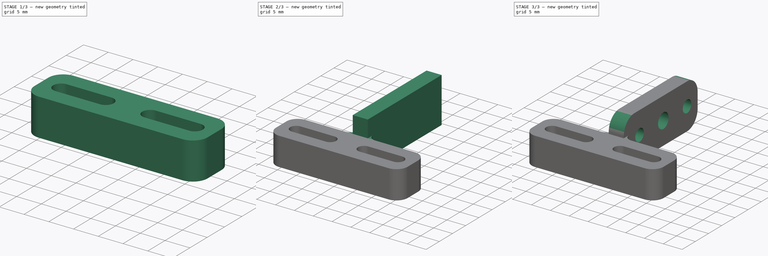
[diagram: build sequence overview — one tinted view per stage of 3, left to right]
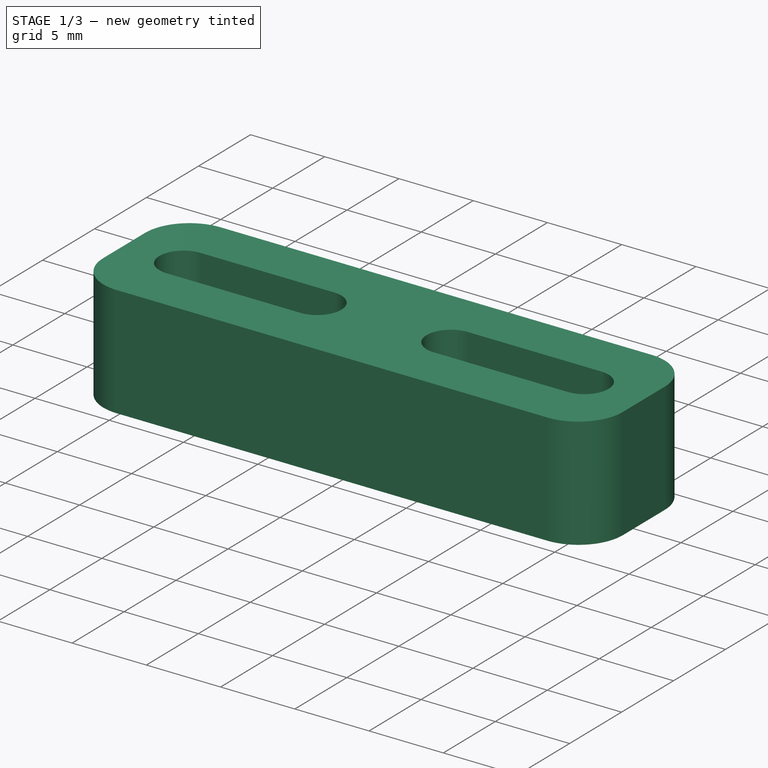
[diagram: stage 1 of 3 — iso view after this stage's code; geometry added in this stage tinted green]
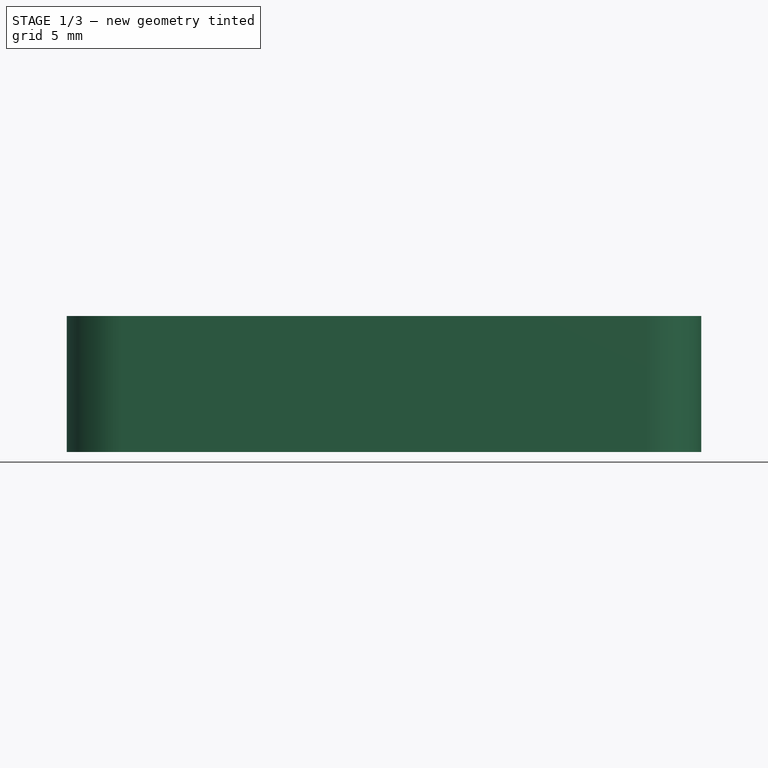
[diagram: stage 1 of 3 — front view after this stage's code; geometry added in this stage tinted green]
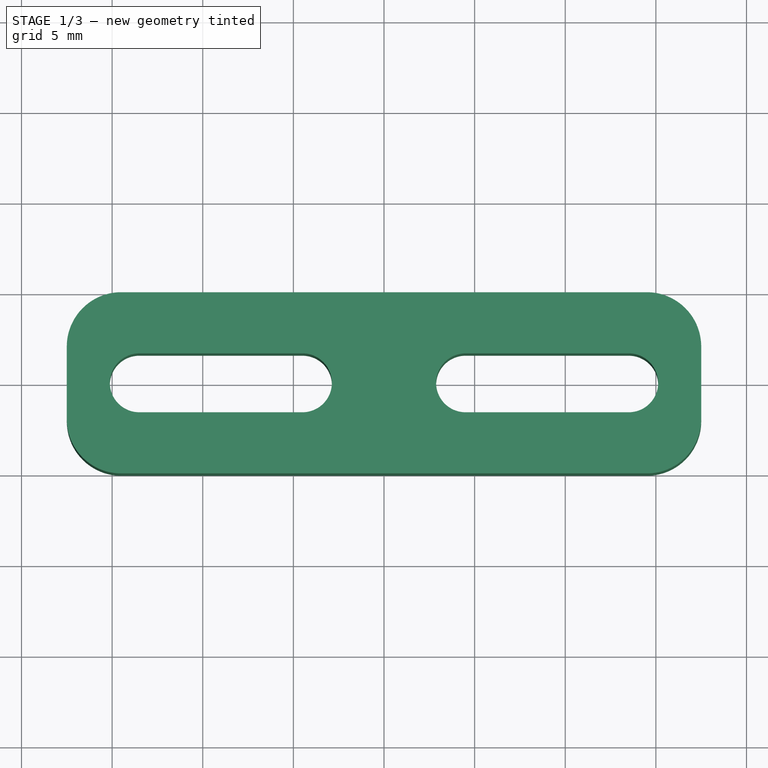
[diagram: stage 1 of 3 — top view after this stage's code; geometry added in this stage tinted green]
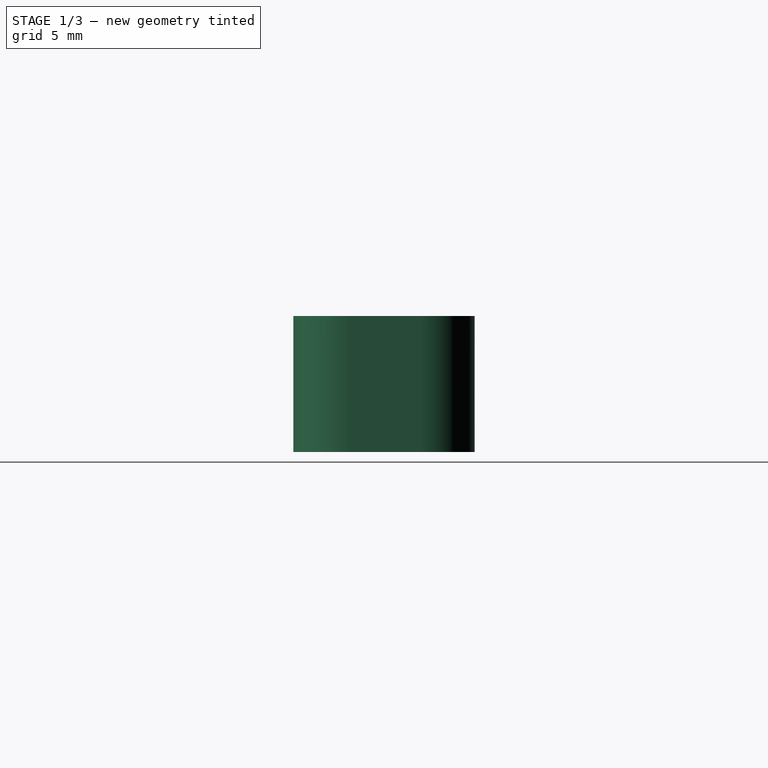
[diagram: stage 1 of 3 — right view after this stage's code; geometry added in this stage tinted green]
FCSTD DOCUMENT  (FreeCAD 0.19R)
Label: bltouch-holder
License: All rights reserved
LicenseURL: http://en.wikipedia.org/wiki/All_rights_reserved
objects: Sketcher::SketchObject×4, PartDesign::Fillet×3, PartDesign::Pad×2, PartDesign::Pocket×1, PartDesign::Body×1
note: 17 computed .brp shape members not serialized (recipe doc carries the construction recipe); baked Part::Feature solids carry a one-line shape summary decoded from their .brp

FEATURE [Sketcher::SketchObject] Sketch
  FullyConstrained = true
  MapMode = 5
  Support = -> [XY_Plane]
  sketch-geometry (12):
    g0: LineSegment StartX=-17.5 StartY=5 StartZ=0 EndX=17.5 EndY=5 EndZ=0
    g1: LineSegment StartX=17.5 StartY=5 StartZ=0 EndX=17.5 EndY=-5 EndZ=0
    g2: LineSegment StartX=17.5 StartY=-5 StartZ=0 EndX=-17.5 EndY=-5 EndZ=0
    g3: LineSegment StartX=-17.5 StartY=-5 StartZ=0 EndX=-17.5 EndY=5 EndZ=0
    g4: ArcOfCircle CenterX=-13.5 CenterY=0 CenterZ=0 NormalX=0 NormalY=0 NormalZ=1 AngleXU=0 Radius=1.625 StartAngle=1.5708 EndAngle=4.71239
    g5: ArcOfCircle CenterX=-4.5 CenterY=8.7e-15 CenterZ=0 NormalX=0 NormalY=0 NormalZ=1 AngleXU=0 Radius=1.625 StartAngle=4.71239 EndAngle=7.85398
    g6: LineSegment StartX=-13.5 StartY=-1.625 StartZ=0 EndX=-4.5 EndY=-1.625 EndZ=0
    g7: LineSegment StartX=-13.5 StartY=1.625 StartZ=0 EndX=-4.5 EndY=1.625 EndZ=0
    g8: ArcOfCircle CenterX=4.5 CenterY=8.7e-15 CenterZ=0 NormalX=0 NormalY=0 NormalZ=1 AngleXU=0 Radius=1.625 StartAngle=1.5708 EndAngle=4.71239
    g9: ArcOfCircle CenterX=13.5 CenterY=8.5e-15 CenterZ=0 NormalX=0 NormalY=0 NormalZ=1 AngleXU=0 Radius=1.625 StartAngle=4.71239 EndAngle=7.85398
    g10: LineSegment StartX=4.5 StartY=-1.625 StartZ=0 EndX=13.5 EndY=-1.625 EndZ=0
    g11: LineSegment StartX=4.5 StartY=1.625 StartZ=0 EndX=13.5 EndY=1.625 EndZ=0
  constraints (29):
    c: Coincident(g0,g1)
    c: Coincident(g1,g2)
    c: Coincident(g2,g3)
    c: Coincident(g3,g0)
    c: Horizontal(g2)
    c: Vertical(g3)
    c: Symmetric(g0,g0,g-2)
    c: DistanceX(g0,g0) = 35
    c: DistanceY(g1,g1) = 10
    c: Symmetric(g1,g0,g-1)
    c: Tangent(g4,g7) = 1.5708
    c: Tangent(g4,g6) = -1.5708
    c: Tangent(g6,g5) = -1.5708
    c: Tangent(g7,g5) = 1.5708
    c: Horizontal(g6)
    c: Equal(g4,g5)
    c: PointOnObject(g4,g-1)
    c: Tangent(g8,g11) = 1.5708
    c: Tangent(g8,g10) = -1.5708
    c: Tangent(g10,g9) = -1.5708
    c: Tangent(g11,g9) = 1.5708
    c: Horizontal(g10)
    c: Equal(g8,g9)
    c: Symmetric(g8,g5,g-2)
    c: Distance(g8,g5) = 9
    c: Equal(g6,g10)
    c: Equal(g4,g8)
    c: Radius(g4) = 1.625
    c: DistanceX(g6,g6) = 9
FEATURE [PartDesign::Pad] Pad
  Direction = (1,1,1)
  Length = 7.5
  Length2 = 100
  Profile = -> Sketch
  Type = 0
FEATURE [PartDesign::Fillet] Fillet
  Base = -> Pad [Edge1,Edge8,Edge5,Edge2]
  BaseFeature = -> Pad
  Radius = 3
  SupportTransform = false
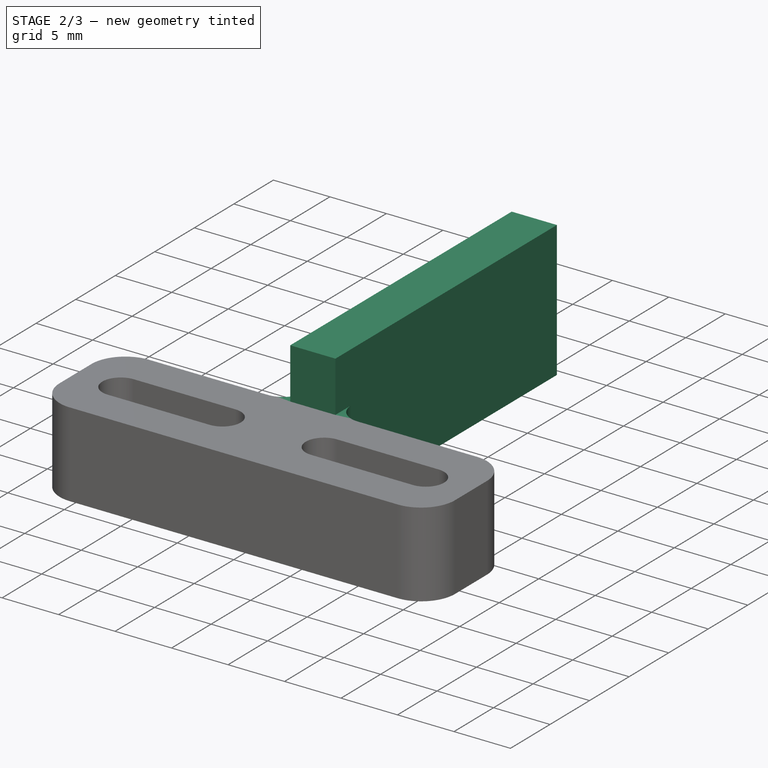
[diagram: stage 2 of 3 — iso view after this stage's code; geometry added in this stage tinted green]
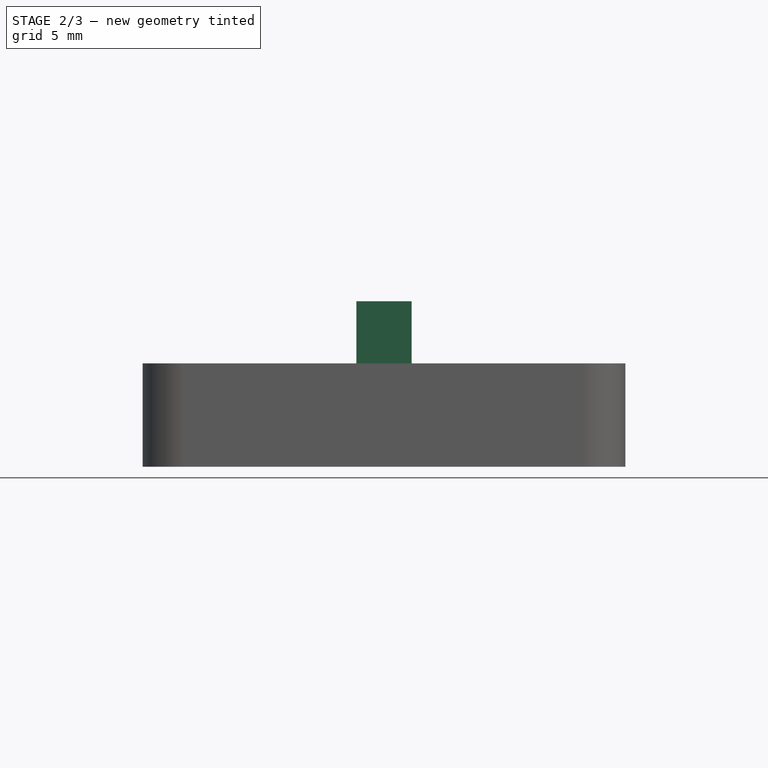
[diagram: stage 2 of 3 — front view after this stage's code; geometry added in this stage tinted green]
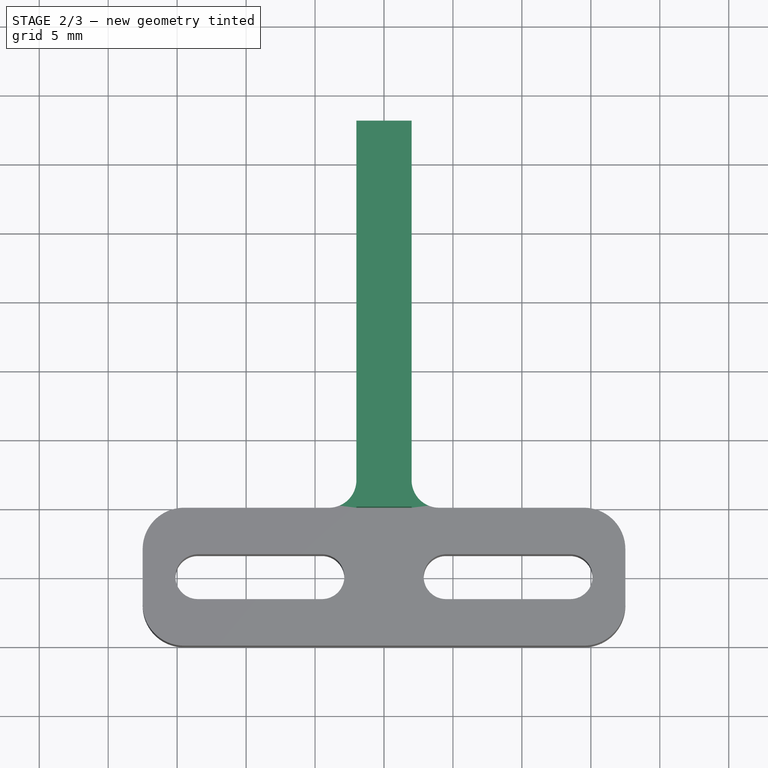
[diagram: stage 2 of 3 — top view after this stage's code; geometry added in this stage tinted green]
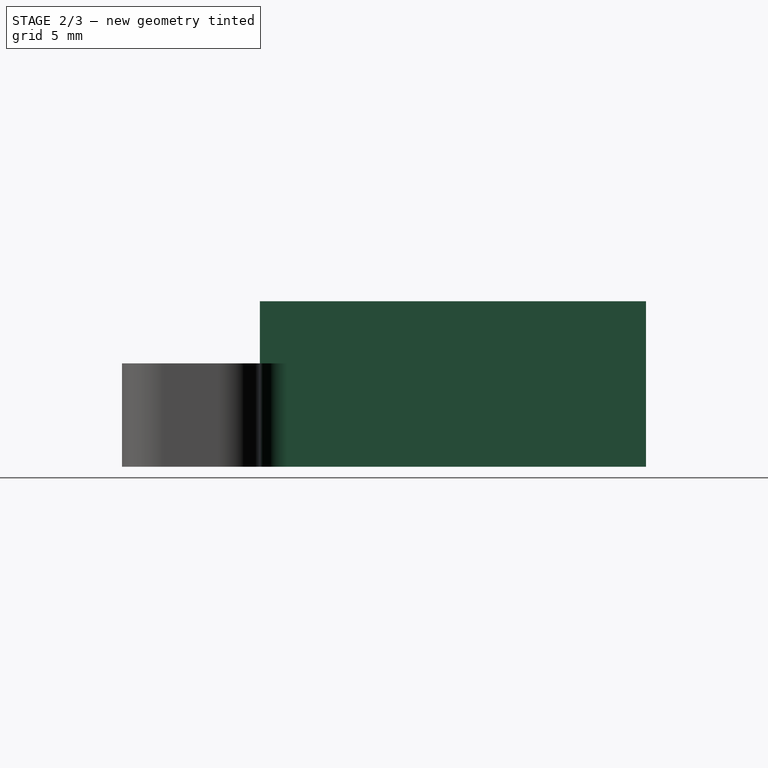
[diagram: stage 2 of 3 — right view after this stage's code; geometry added in this stage tinted green]
FEATURE [Sketcher::SketchObject] Sketch001
  FullyConstrained = true
  MapMode = 5
  Placement = pos=(0,0,7.5) rot=(0,0,1;0rad)
  Support = -> [Fillet]
FEATURE [Sketcher::SketchObject] Sketch002
  ExternalGeometry = -> [Fillet]
  FullyConstrained = true
  MapMode = 5
  Placement = pos=(0,0,7.5) rot=(0,0,1;0rad)
  Support = -> [Fillet]
  sketch-geometry (4):
    g0: LineSegment StartX=-2 StartY=33 StartZ=0 EndX=2 EndY=33 EndZ=0
    g1: LineSegment StartX=2 StartY=33 StartZ=0 EndX=2 EndY=5 EndZ=0
    g2: LineSegment StartX=2 StartY=5 StartZ=0 EndX=-2 EndY=5 EndZ=0
    g3: LineSegment StartX=-2 StartY=5 StartZ=0 EndX=-2 EndY=33 EndZ=0
  constraints (11):
    c: Coincident(g0,g1)
    c: Coincident(g1,g2)
    c: Coincident(g2,g3)
    c: Coincident(g3,g0)
    c: Horizontal(g0)
    c: Vertical(g1)
    c: Vertical(g3)
    c: PointOnObject(g1,g-3)
    c: Symmetric(g1,g2,g-2)
    c: DistanceX(g2,g2) = 4
    c: DistanceY(g1,g1) = 28
FEATURE [PartDesign::Pad] Pad001
  BaseFeature = -> Fillet
  Direction = (1,1,1)
  Length = 4.5
  Length2 = 7.5
  Profile = -> Sketch002
  Reversed = true
  Type = 4
FEATURE [PartDesign::Fillet] Fillet001
  Base = -> Pad001 [Edge47,Edge2]
  BaseFeature = -> Pad001
  Radius = 2
  SupportTransform = false
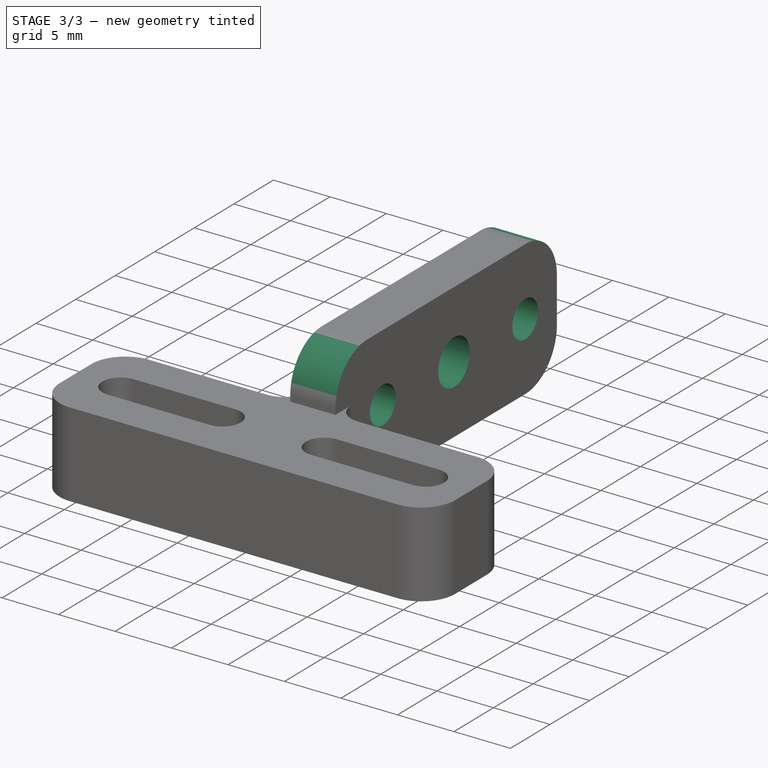
[diagram: stage 3 of 3 — iso view after this stage's code; geometry added in this stage tinted green]
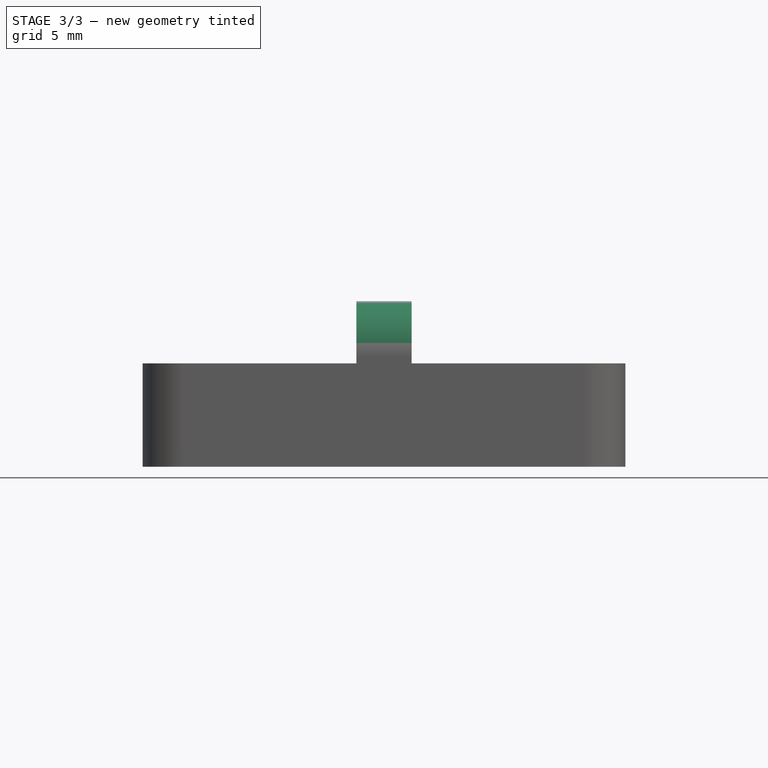
[diagram: stage 3 of 3 — front view after this stage's code; geometry added in this stage tinted green]
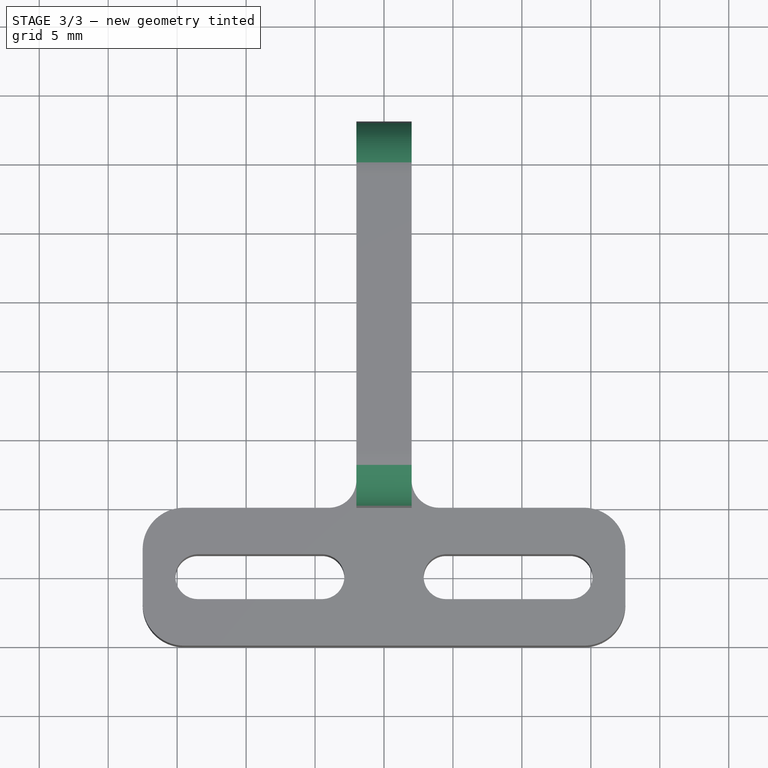
[diagram: stage 3 of 3 — top view after this stage's code; geometry added in this stage tinted green]
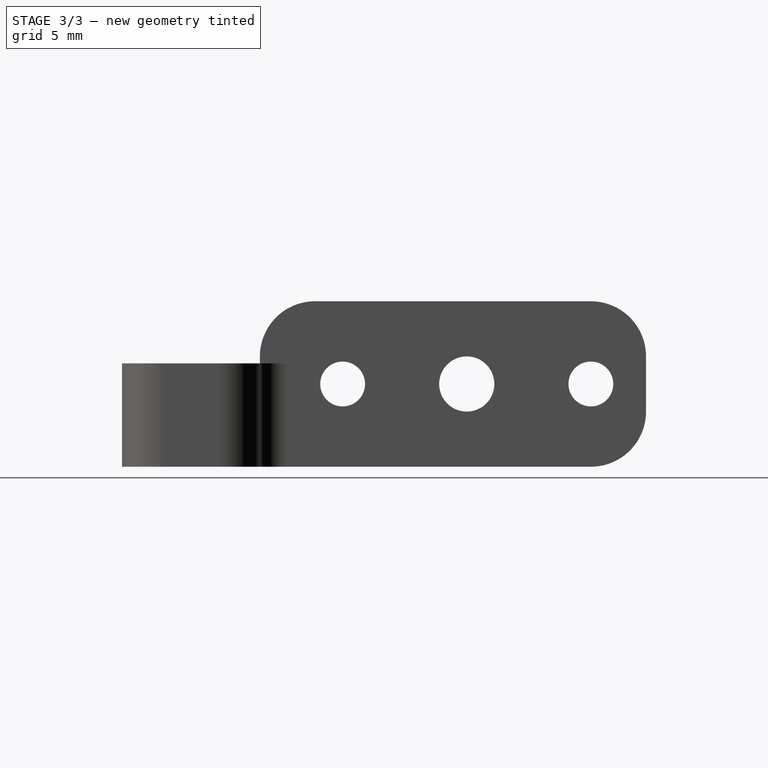
[diagram: stage 3 of 3 — right view after this stage's code; geometry added in this stage tinted green]
FEATURE [Sketcher::SketchObject] Sketch003
  ExternalGeometry = -> [Fillet001]
  FullyConstrained = true
  MapMode = 5
  Placement = pos=(-2,0,0) rot=(0.57735,-0.57735,-0.57735;2.0944rad)
  Support = -> [Fillet001]
  sketch-geometry (4):
    g0: LineSegment StartX=-33 StartY=6 StartZ=0 EndX=-5 EndY=6 EndZ=0
    g1: Circle CenterX=-29 CenterY=6 CenterZ=0 NormalX=0 NormalY=0 NormalZ=1 AngleXU=0 Radius=1.625
    g2: Circle CenterX=-11 CenterY=6 CenterZ=0 NormalX=0 NormalY=0 NormalZ=1 AngleXU=0 Radius=1.625
    g3: Circle CenterX=-20 CenterY=6 CenterZ=0 NormalX=0 NormalY=0 NormalZ=1 AngleXU=0 Radius=2
  constraints (12):
    c: PointOnObject(g0,g-4)
    c: PointOnObject(g0,g-3)
    c: Symmetric(g-4,g-4,g0)
    c: PointOnObject(g1,g0)
    c: PointOnObject(g2,g0)
    c: Distance(g1,g2) = 18
    c: Distance(g1,g-4) = 4
    c: Radius(g1) = 1.625
    c: Equal(g1,g2)
    c: PointOnObject(g3,g0)
    c: Distance(g3,g1) = 9
    c: Radius(g3) = 2
FEATURE [PartDesign::Pocket] Pocket
  BaseFeature = -> Fillet001
  Length = 5
  Length2 = 100
  Profile = -> Sketch003
  Type = 1
FEATURE [PartDesign::Fillet] Fillet002
  Base = -> Pocket [Edge50,Edge81,Edge73]
  BaseFeature = -> Pocket
  Radius = 4
  SupportTransform = false
FEATURE [PartDesign::Body] Body
  Group = -> [Sketch,Pad,Fillet,Sketch001,Sketch002,Pad001,Fillet001,Sketch003,Pocket,Fillet002]
  Origin = -> Origin
  Tip = -> Fillet002
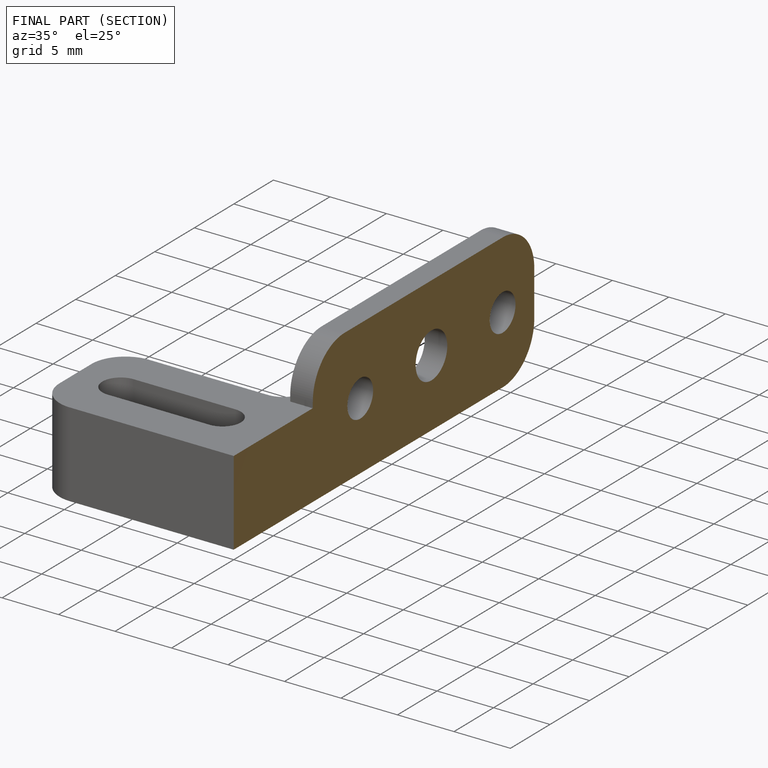
[diagram: finished part — half-section view (interior)]
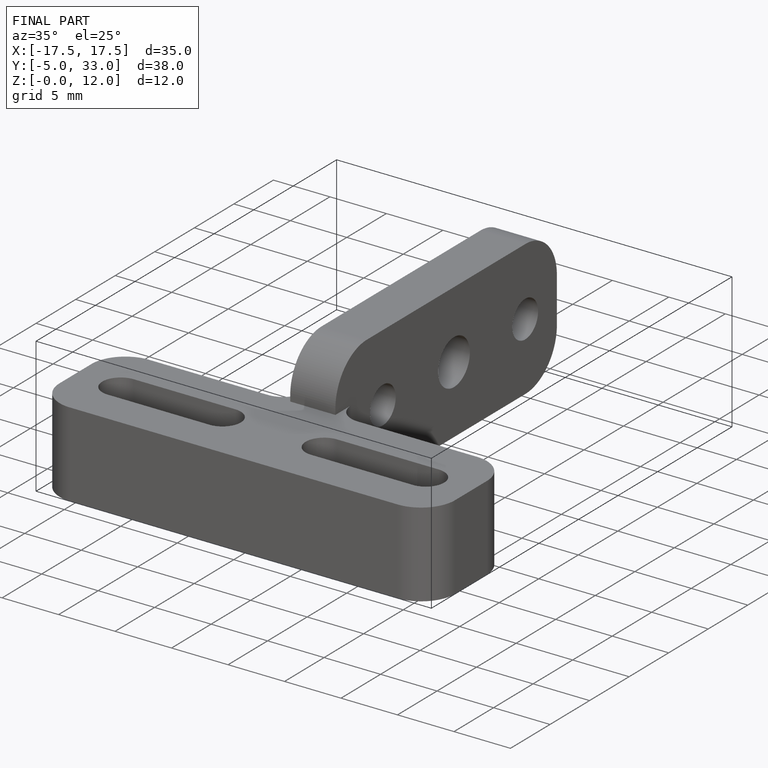
[diagram: finished part — iso view with bounding-box wireframe]
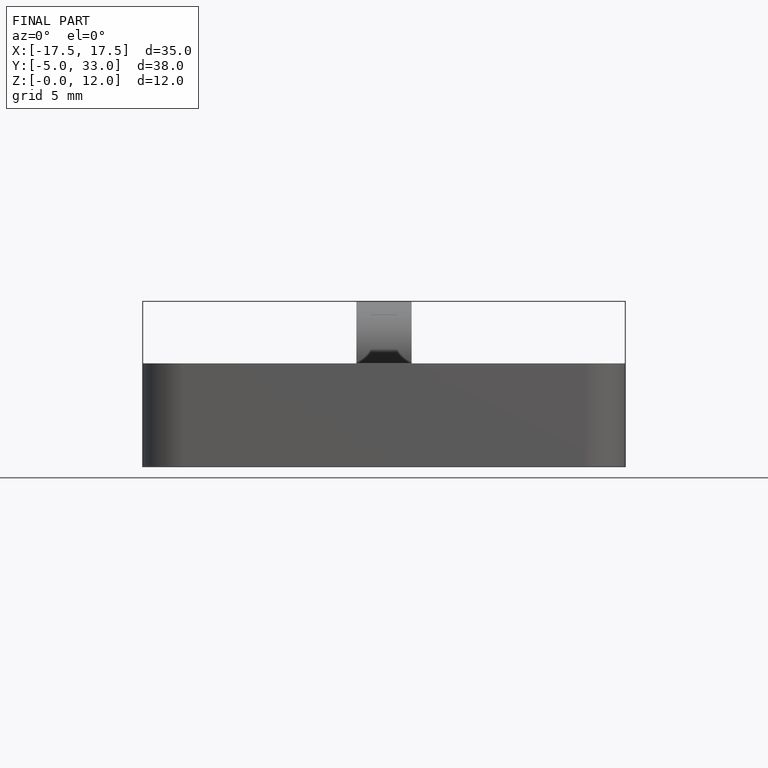
[diagram: finished part — front view with bounding-box wireframe]
